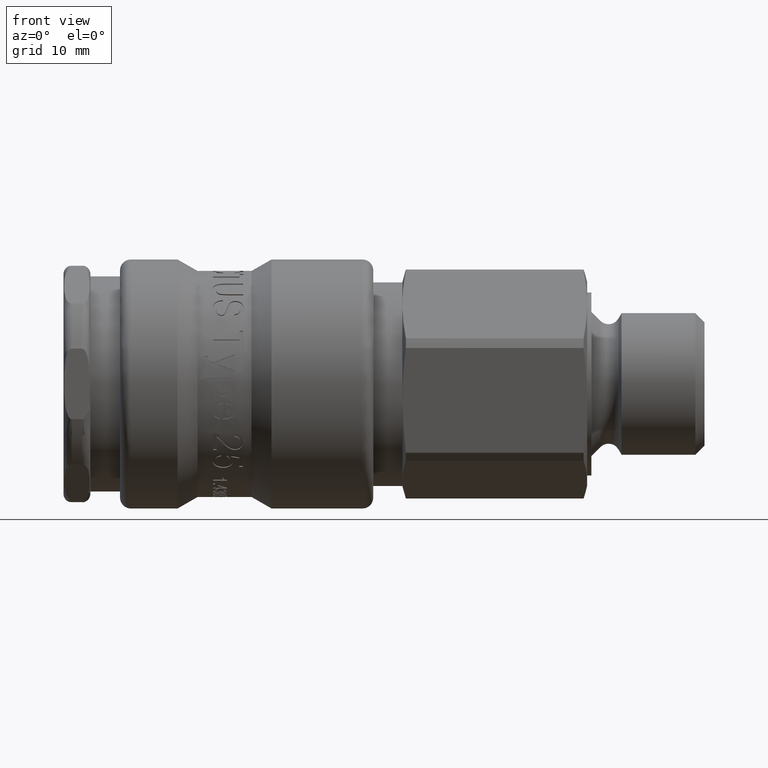
[diagram: clean part render]
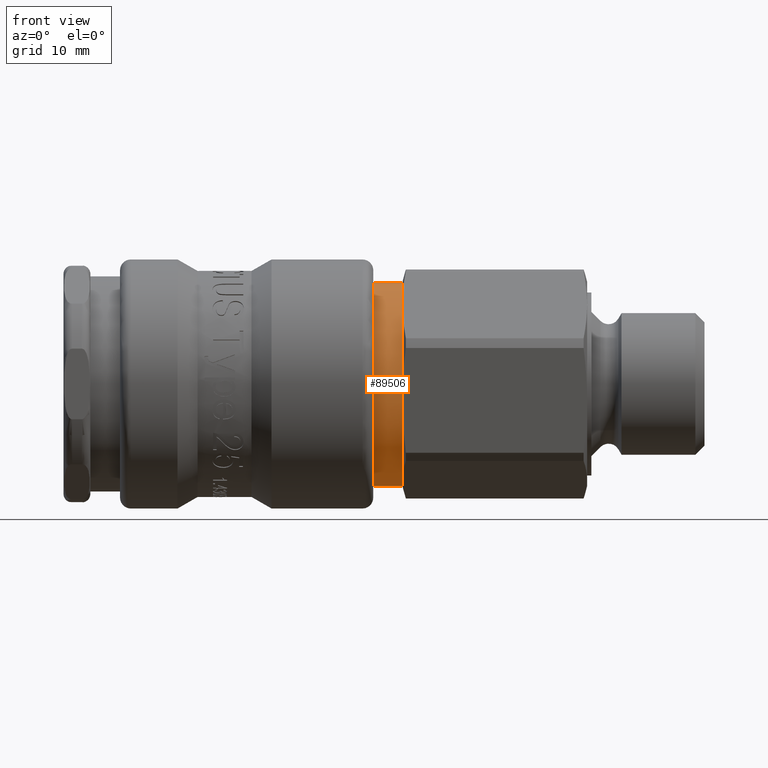
[diagram: same view with one face highlighted and labeled with its STEP entity id]
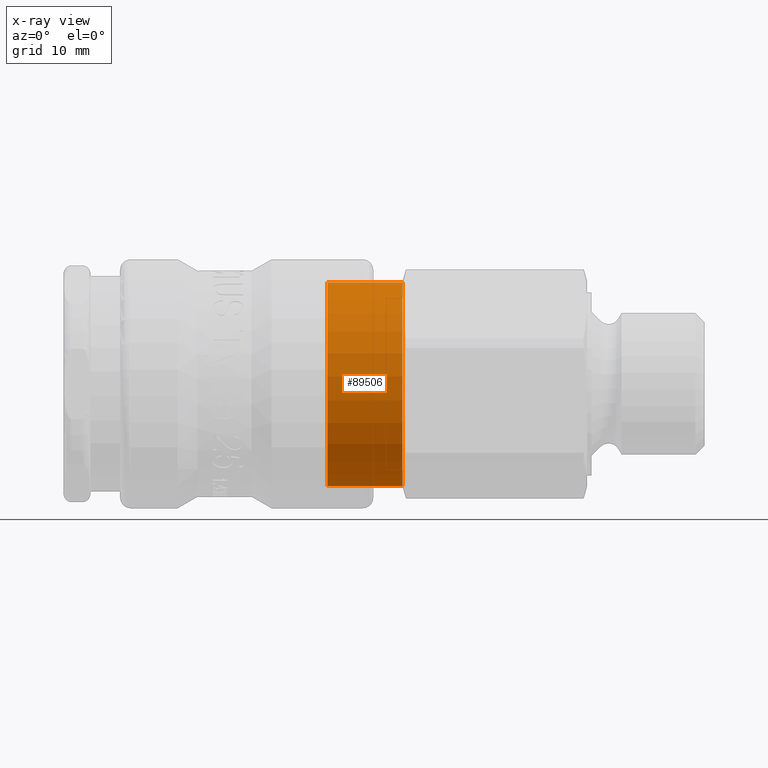
[diagram: x-ray of the same camera — body ghosted, the highlighted face saturated]
A machine part, front view. The second image highlights one B-rep face of the part: STEP entity #89506.
The next image is the same camera in x-ray: the body ghosted, the highlighted face saturated — about 0% of this face is hidden behind the body in this view.
In plain terms, the highlighted cylindrical surface (bore or boss wall) has radius 9.475 mm, axis along (-1, 0, 0).
Its self-contained STEP definition (entity closure, byte-faithful):
#88926=CARTESIAN_POINT('',(31.450000000000014,5.992944513554242,-7.338953675930929));
#88927=VERTEX_POINT('',#88926);
#88928=CARTESIAN_POINT('',(31.450000000000014,0.0,0.0));
#88929=DIRECTION('',(-1.0,0.0,0.0));
#88930=DIRECTION('',(0.0,0.632500740216807,-0.774559754715665));
#88931=AXIS2_PLACEMENT_3D('',#88928,#88929,#88930);
#88932=CIRCLE('',#88931,9.475000000000000);
#88933=EDGE_CURVE('',#88927,#88927,#88932,.T.);
#89327=CARTESIAN_POINT('',(24.500000000000011,5.992944513554242,-7.338953675930929));
#89328=VERTEX_POINT('',#89327);
#89329=CARTESIAN_POINT('',(24.500000000000011,0.0,0.0));
#89330=DIRECTION('',(-1.0,0.0,0.0));
#89331=DIRECTION('',(0.0,0.632500740216807,-0.774559754715665));
#89332=AXIS2_PLACEMENT_3D('',#89329,#89330,#89331);
#89333=CIRCLE('',#89332,9.475000000000000);
#89334=EDGE_CURVE('',#89328,#89328,#89333,.T.);
#89495=CARTESIAN_POINT('',(27.975000000000012,0.0,0.0));
#89496=DIRECTION('',(-1.0,0.0,0.0));
#89497=DIRECTION('',(0.0,0.632500740216807,-0.774559754715665));
#89498=AXIS2_PLACEMENT_3D('',#89495,#89496,#89497);
#89499=CYLINDRICAL_SURFACE('',#89498,9.475000000000000);
#89500=ORIENTED_EDGE('',*,*,#89334,.F.);
#89501=EDGE_LOOP('',(#89500));
#89502=FACE_OUTER_BOUND('',#89501,.T.);
#89503=ORIENTED_EDGE('',*,*,#88933,.T.);
#89504=EDGE_LOOP('',(#89503));
#89505=FACE_BOUND('',#89504,.T.);
#89506=ADVANCED_FACE('',(#89502,#89505),#89499,.T.);